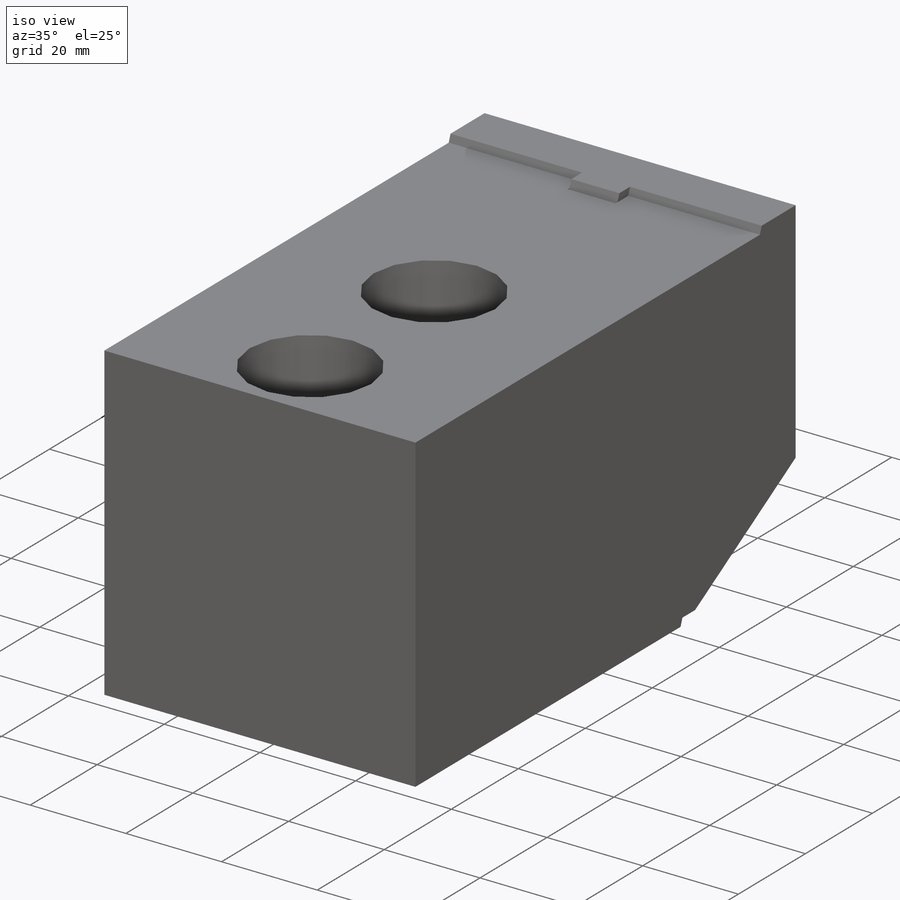
[diagram: iso view]
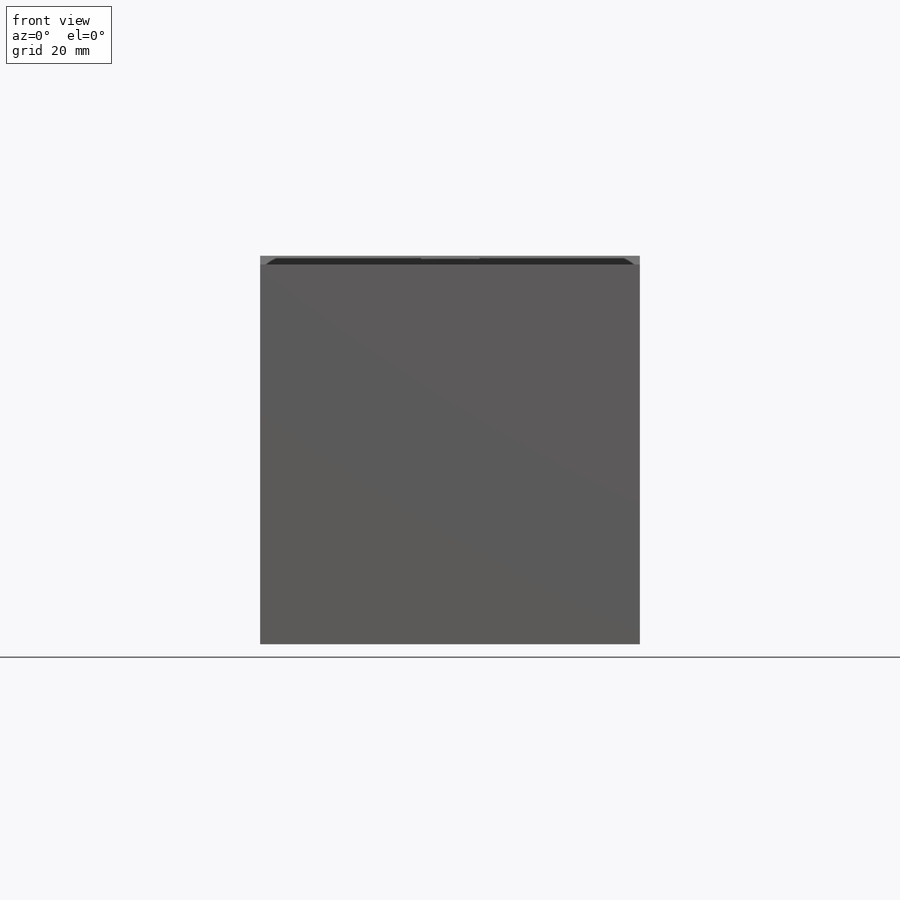
[diagram: front view]
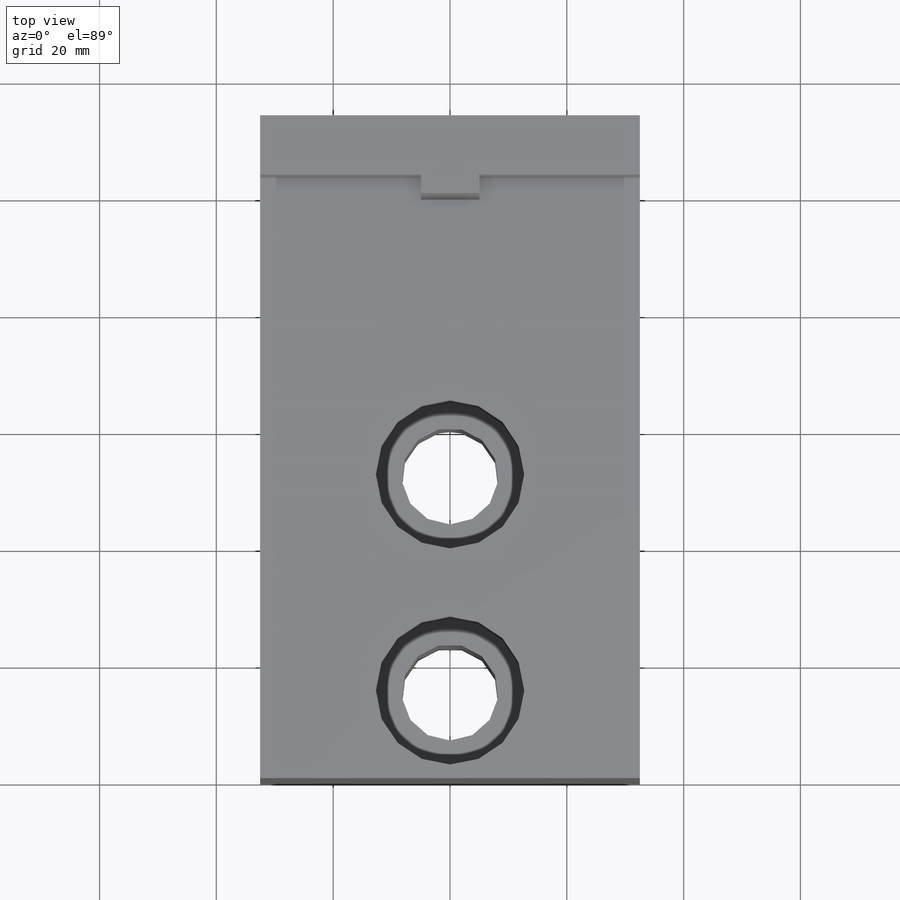
[diagram: top view]
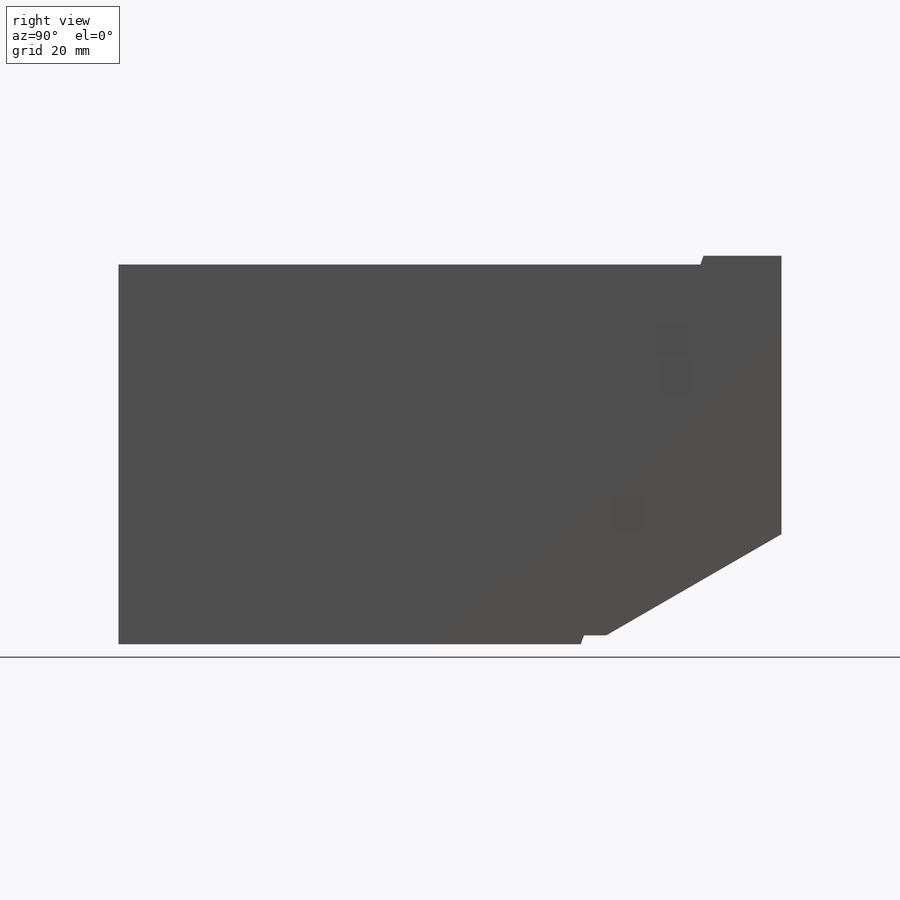
[diagram: right view]
SOLIDWORKS PART (.sldprt)
format: sldprt  version: not decoded by parser v0  size: 257,536 bytes
history: native  units: mm
features: sketch x10, extrude x4, cut_extrude x3, material x1, hole x1, cut_revolve x1 (+13 scaffold rows collapsed)
feature tree (33):
  scaffold x13  (default folders/planes/origin — collapsed)
  material  "Alloy Steel"
  sketch  "Sketch1"  dims[c1.D1=65.024mm c1.D2=102.7938mm c1.D3=~31.895536mm c2.D3=70.0deg c3.D3=29.972mm c4.D3=20.0deg]
  extrude  "Extrude1"  Depth=65.024mm
  sketch  "Sketch2"  dims[D1=3.7338mm]
  cut_extrude  "Cut-Extrude1"  Depth=10.0076mm
  hole  "Hole1"  Diameter=16.51mm Depth=65.024mm
  sketch  "Sketch6"  dims[D1=15.0114mm D2=37.0078mm]
  sketch  "Sketch5"  dims[Diameter=16.51mm Depth=65.024mm C-Bore Diameter=25.4mm C-Bore Depth=18.034mm]
  sketch  "Sketch7"  dims[c1.D1=~0.09652mm c1.D2=~1.520215mm c1.D3=78.486mm c1.D4=64.9986mm c1.D5=17.3228mm c1.D6=3.2258mm c2.D6=30.0deg c2.D7=~10.149332mm c2.D8=~4.438044mm c3.D8=45.0deg c3.D9=~7.999984mm c3.D10=45.0deg c3.D3=~110.396362mm c4.D10=~101.50348mm c4.D11=~0.116332mm c4.D3=113.4872mm]
  extrude  "Extrude2"  Depth=65.024mm
  sketch  "Sketch8"  dims[c1.D1=29.4894mm c2.D1=~179.330113deg c3.D1=3.0mm]
  extrude  "Extrude3"  Depth=9.99998mm
  sketch  "Sketch9"  dims[D1=11.8999mm D2=26.0mm D3=29.5mm D4=~6.20014mm D5=~7.29996mm D6=~11.000232mm D7=25.4mm]
  cut_revolve  "Cut-Revolve1"  Angle=360deg
  sketch  "Sketch10"  dims[D1=10.0mm]
  extrude  "Extrude4"  Depth=6mm
  sketch  "Sketch11"  dims[D1=6.0mm]
  cut_extrude  "Cut-Extrude2"  [1 undecoded]
  sketch  "Sketch12"  dims[D1=32.004mm]
  cut_extrude  "Cut-Extrude3"  Depth=5.842mm
decode coverage: 18 of 19 modeling features carry decoded parameters
note: ~ marks probable driven/reference dimensions
note: 1 parameter value undecoded
note: suppression state not decoded; provenance and decode notes live in map.json
